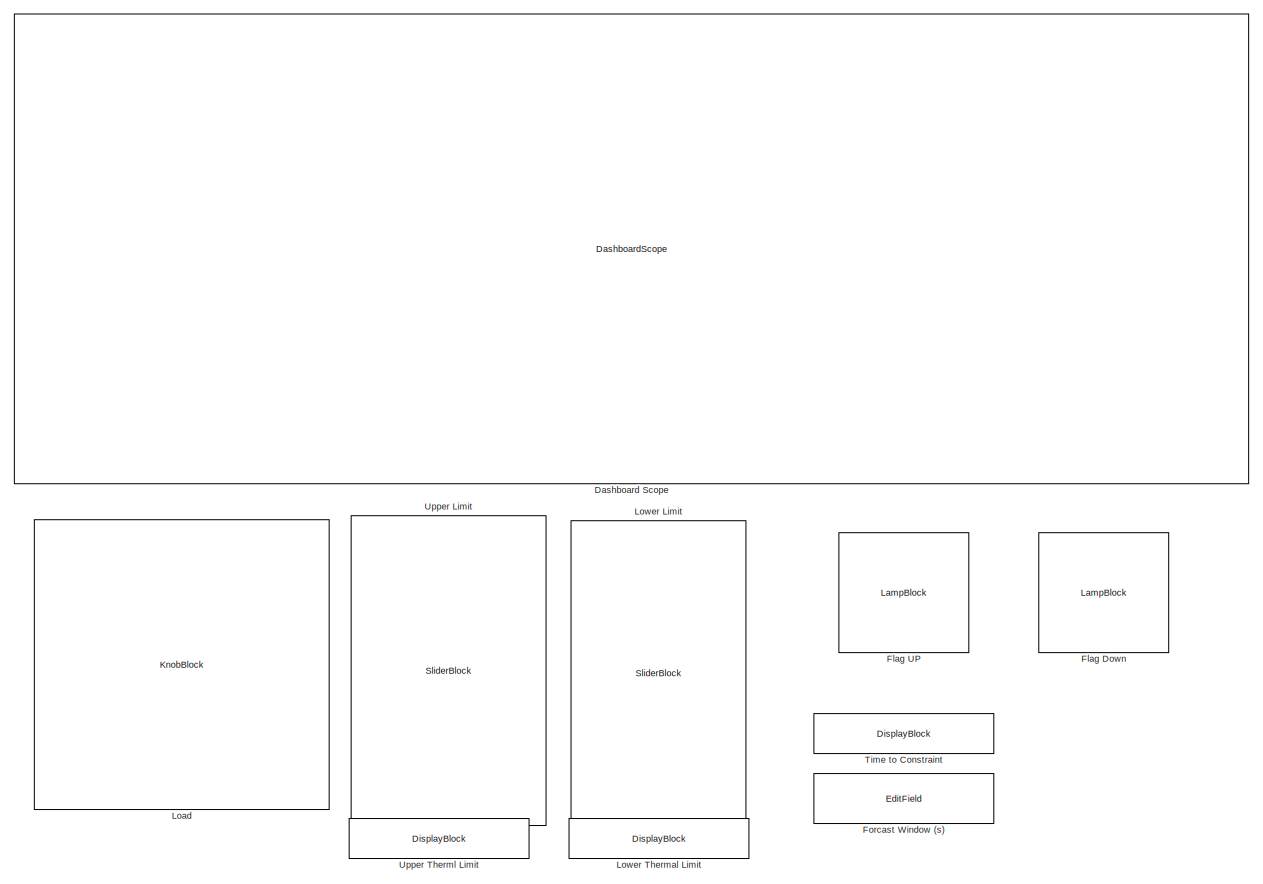
[diagram: root canvas - part 1/2, right side, full height]
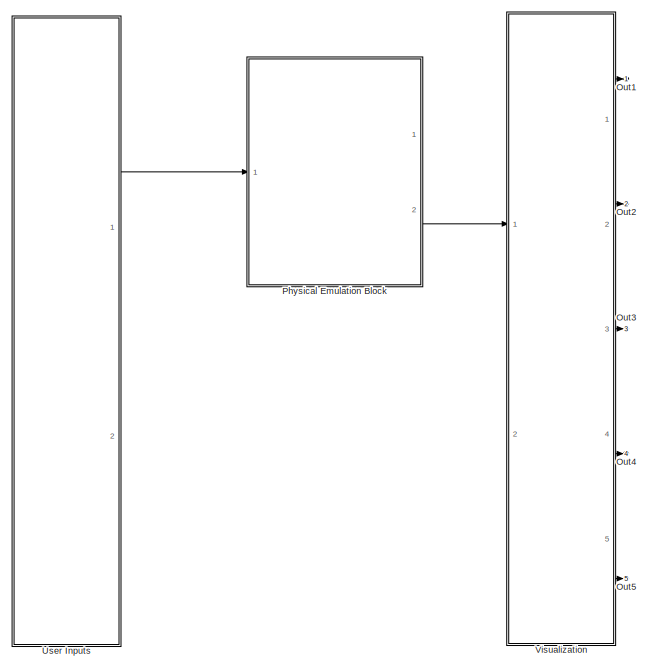
[diagram: root canvas - part 2/2, left side, full height]
MODEL slx_e4f8a79f2551
KIND model
CONFIG AbsTol = auto
CONFIG EnableMultiTasking = off
CONFIG FixedStep = 1/100
CONFIG MaxStep = auto
CONFIG MinStep = auto
CONFIG RelTol = 1e-3
CONFIG SampleTimeConstraint = Unconstrained
CONFIG SolverName = FixedStepAuto
CONFIG StartTime = 0.0
CONFIG StopTime = inf
BLOCK [DisplayBlock]  Time to Constraint
  Format = short
  LabelPosition = Hide
  NameLocation = right
  Transparency = 1
BLOCK [DashboardScope] Dashboard Scope
  TimeSpan = 50
  UpdateMode = Scroll
  Ymax = 27
  Ymin = 22
BLOCK [LampBlock] Flag Down
  LabelPosition = Hide
BLOCK [LampBlock] Flag UP
  LabelPosition = Hide
BLOCK [EditField] Forcast Window (s)
  Alignment = Center
  LabelPosition = Hide
  NameLocation = right
  ShowInitialText = on
BLOCK [KnobBlock] Load
  LabelPosition = Hide
  ScaleMax = 7
  ScaleMin = 0.1
  TickInterval = 1
BLOCK [SliderBlock] Lower Limit
  LabelPosition = Hide
  ScaleMax = 80
  ScaleMin = 20
  TickInterval = 10
BLOCK [DisplayBlock] Lower Thermal Limit
  Format = shortG
  LabelPosition = Hide
  Transparency = 1
BLOCK [Outport] Out1
BLOCK [Outport] Out2
  Port = 2
BLOCK [Outport] Out3
  Port = 3
BLOCK [Outport] Out4
  Port = 4
BLOCK [Outport] Out5
  Port = 5
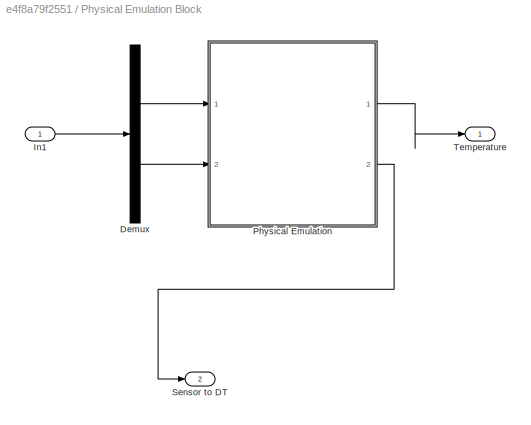
BLOCK [SubSystem] Physical Emulation Block
  NameLocation = top
  PortSchema = {"entries":[{"content":{"sides":[{"content":{"connectorIds":["In1"]},"type":"ConnectorPlacement.EquallySpacedRectSide","uuid":"8560139e-4285-4401-a1f9-6e73b4801051"},{"content":{"connectorIds":["Out1"],"side":"RIGHT"},"type":"ConnectorPlacement.EquallySpacedRectSide","uuid":"0f67ff7b-1654-419c-a011-ac6310eed1b7"},{"content":{"connectorIds":[],"side":"TOP"},"type":"ConnectorPlacement.EquallySpacedR...<+390ch>
  Ports = [1, 2]
  RequestExecContextInheritance = off
BLOCK [Demux] Physical Emulation Block/Demux
  Outputs = 2
  Ports = [1, 2]
BLOCK [Inport] Physical Emulation Block/In1
BLOCK [ModelReference] Physical Emulation Block/Physical Emulation
  CopyOfModelProtected = on
  ModelNameDialog = Physical_Emulation.slxp
  ModelReferenceVersion = 1.6
  Ports = [2, 2]
BLOCK [Outport] Physical Emulation Block/Sensor to DT
  Port = 2
BLOCK [Outport] Physical Emulation Block/Temperature
BLOCK [SliderBlock] Upper Limit
  LabelPosition = Hide
  ScaleMax = 80
  ScaleMin = 20
  TickInterval = 10
BLOCK [DisplayBlock] Upper Therml Limit
  Format = shortG
  LabelPosition = Hide
  Transparency = 1
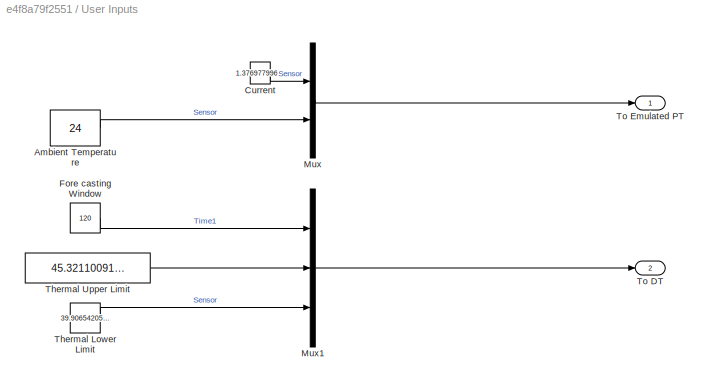
BLOCK [SubSystem] User Inputs
  Ports = [0, 2]
  RequestExecContextInheritance = off
BLOCK [Constant] User Inputs/Ambient Temperature
  NameLocation = left
  Value = 24
BLOCK [Constant] User Inputs/Current
  NameLocation = left
  Value = 1.376977996826172
BLOCK [Constant] User Inputs/Fore casting Window
  NameLocation = left
  Value = 120
BLOCK [Mux] User Inputs/Mux
  DisplayOption = bar
  Inputs = 2
  Ports = [2, 1]
BLOCK [Mux] User Inputs/Mux1
  DisplayOption = bar
  Inputs = 3
  Ports = [3, 1]
BLOCK [Constant] User Inputs/Thermal Lower Limit
  NameLocation = left
  Value = 39.90654205607477
BLOCK [Constant] User Inputs/Thermal Upper Limit
  NameLocation = left
  Value = 45.3211009174312
BLOCK [Outport] User Inputs/To DT
  Port = 2
BLOCK [Outport] User Inputs/To Emulated PT
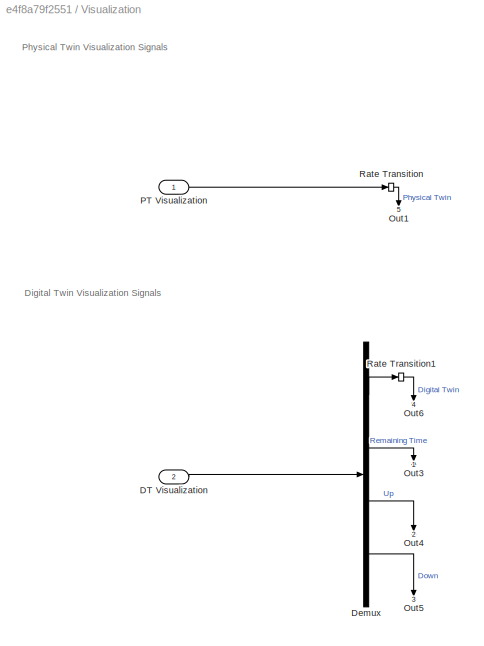
BLOCK [SubSystem] Visualization
  Ports = [2, 5]
  RequestExecContextInheritance = off
BLOCK [Inport] Visualization/DT Visualization
  Port = 2
BLOCK [Demux] Visualization/Demux
  Ports = [1, 4]
BLOCK [Outport] Visualization/Out1
  NameLocation = left
  Port = 5
BLOCK [Outport] Visualization/Out3
  NameLocation = left
BLOCK [Outport] Visualization/Out4
  NameLocation = left
  Port = 2
BLOCK [Outport] Visualization/Out5
  NameLocation = left
  Port = 3
BLOCK [Outport] Visualization/Out6
  NameLocation = left
  Port = 4
BLOCK [Inport] Visualization/PT Visualization 
BLOCK [RateTransition] Visualization/Rate Transition
  OutPortSampleTime = 1
BLOCK [RateTransition] Visualization/Rate Transition1
  OutPortSampleTime = 1
ANNOTATION Visualization: Digital Twin Visualization Signals
ANNOTATION Visualization: Physical Twin Visualization Signals
LINE Physical Emulation Block/Demux:1 -> Physical Emulation Block/Physical Emulation:1
LINE Physical Emulation Block/Demux:2 -> Physical Emulation Block/Physical Emulation:2
LINE Physical Emulation Block/In1:1 -> Physical Emulation Block/Demux:1
LINE Physical Emulation Block/Physical Emulation:1 -> Physical Emulation Block/Temperature:1
LINE Physical Emulation Block/Physical Emulation:2 -> Physical Emulation Block/Sensor to DT:1
LINE Physical Emulation Block:1 -> Visualization:1
LINE User Inputs/Ambient Temperature:1 -> User Inputs/Mux:2
LINE User Inputs/Current:1 -> User Inputs/Mux:1
LINE User Inputs/Fore casting Window:1 -> User Inputs/Mux1:1
LINE User Inputs/Mux1:1 -> User Inputs/To DT:1
LINE User Inputs/Mux:1 -> User Inputs/To Emulated PT:1
LINE User Inputs/Thermal Lower Limit:1 -> User Inputs/Mux1:3
LINE User Inputs/Thermal Upper Limit:1 -> User Inputs/Mux1:2
LINE User Inputs:1 -> Physical Emulation Block:1
LINE Visualization/DT Visualization:1 -> Visualization/Demux:1
LINE Visualization/Demux:1 -> Visualization/Rate Transition1:1
LINE Visualization/Demux:2 -> Visualization/Out3:1
LINE Visualization/Demux:3 -> Visualization/Out4:1
LINE Visualization/Demux:4 -> Visualization/Out5:1
LINE Visualization/PT Visualization :1 -> Visualization/Rate Transition:1
LINE Visualization/Rate Transition1:1 -> Visualization/Out6:1
LINE Visualization/Rate Transition:1 -> Visualization/Out1:1
LINE Visualization:1 -> Out1:1
LINE Visualization:2 -> Out2:1
LINE Visualization:3 -> Out3:1
LINE Visualization:4 -> Out4:1
LINE Visualization:5 -> Out5:1
